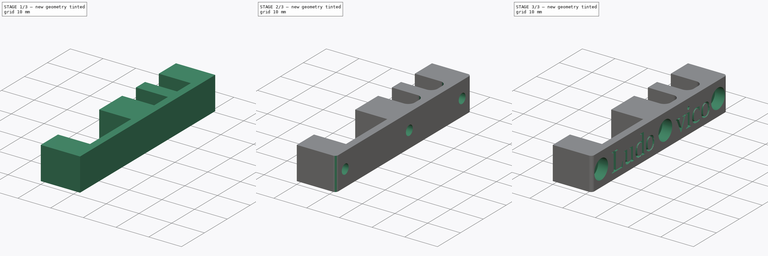
[diagram: build sequence overview — one tinted view per stage of 3, left to right]
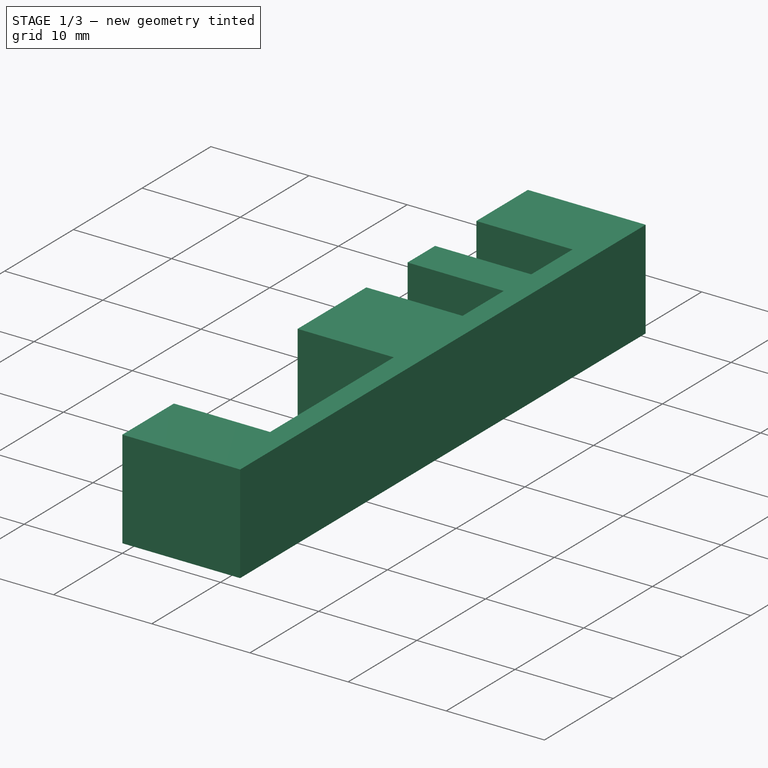
[diagram: stage 1 of 3 — iso view after this stage's code; geometry added in this stage tinted green]
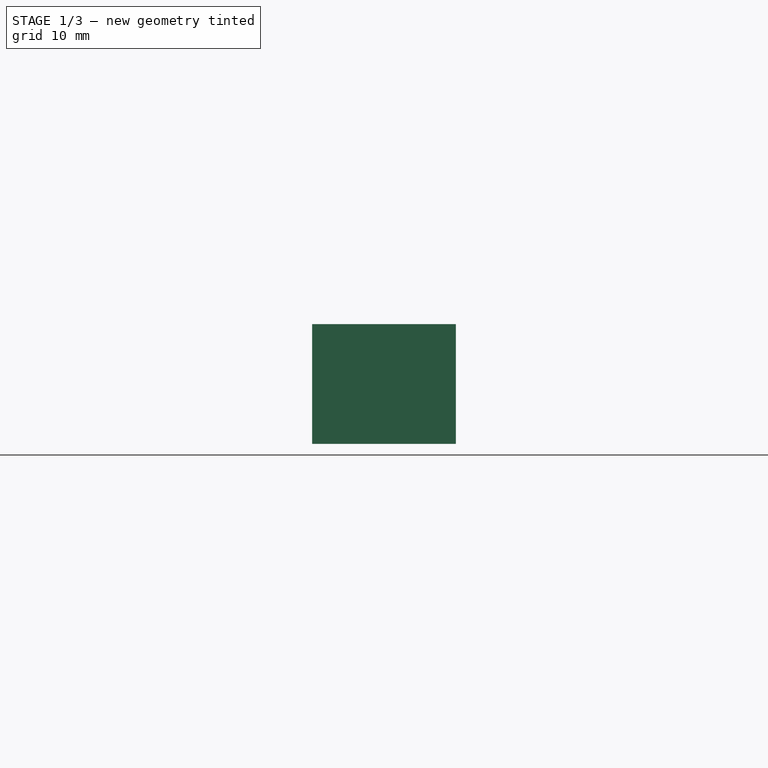
[diagram: stage 1 of 3 — front view after this stage's code; geometry added in this stage tinted green]
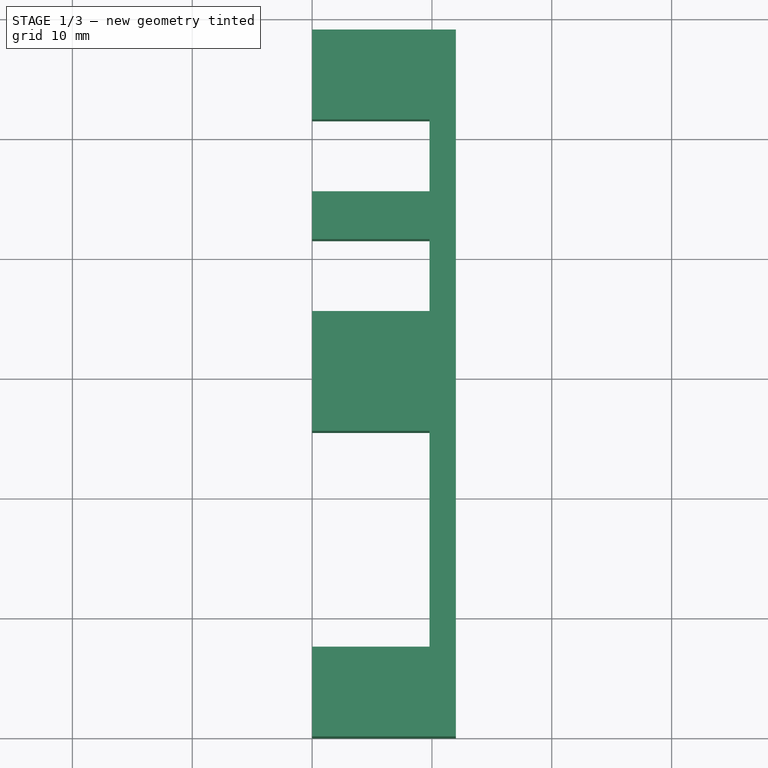
[diagram: stage 1 of 3 — top view after this stage's code; geometry added in this stage tinted green]
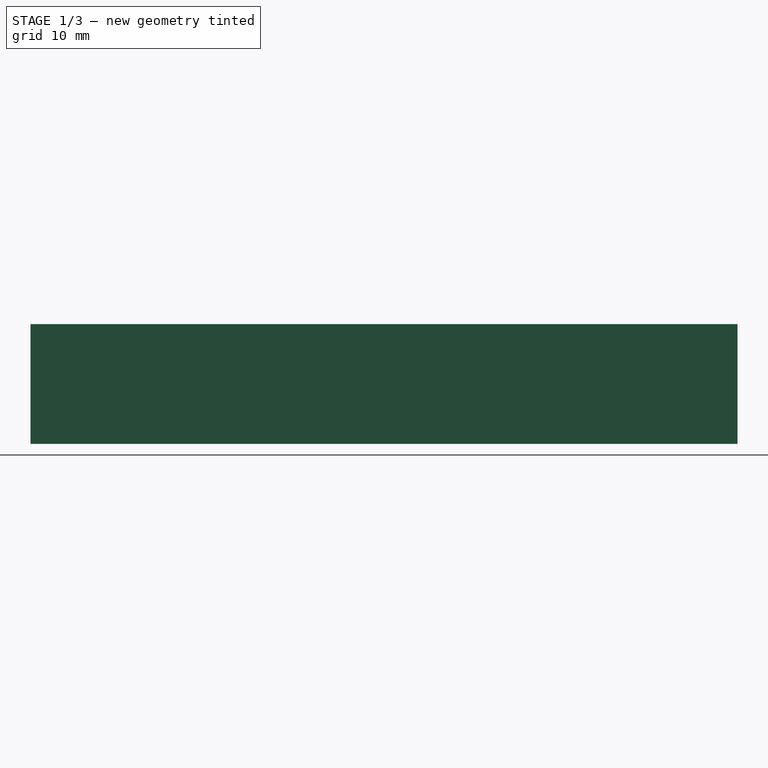
[diagram: stage 1 of 3 — right view after this stage's code; geometry added in this stage tinted green]
FCSTD DOCUMENT  (FreeCAD 0.16R6703 (Git))
Label: Trava de Cabo 2
License: FreeArt
LicenseURL: http://artlibre.org/licence/lal
objects: PartDesign::Pocket×4, Sketcher::SketchObject×3, PartDesign::Fillet×2, Part::Box×1, Part::Part2DObjectPython×1
note: 15 computed .brp shape members not serialized (recipe doc carries the construction recipe); baked Part::Feature solids carry a one-line shape summary decoded from their .brp

FEATURE [Part::Box] Box  label="Cube"
  Height = 10
  Length = 12
  Width = 59
FEATURE [Sketcher::SketchObject] Sketch
  Placement = pos=(0,0,10) rot=(0,0,1;0rad)
  Support = -> Box [Face6]
  sketch-geometry (13):
    g0: LineSegment StartX=0 StartY=25.5 StartZ=0 EndX=9.8 EndY=25.5 EndZ=0
    g1: LineSegment StartX=9.8 StartY=25.5 StartZ=0 EndX=9.8 EndY=7.5 EndZ=0
    g2: LineSegment StartX=9.8 StartY=7.5 StartZ=0 EndX=0 EndY=7.5 EndZ=0
    g3: LineSegment StartX=0 StartY=7.5 StartZ=0 EndX=0 EndY=25.5 EndZ=0
    g4: LineSegment StartX=0 StartY=51.5 StartZ=0 EndX=9.8 EndY=51.5 EndZ=0
    g5: LineSegment StartX=9.8 StartY=51.5 StartZ=0 EndX=9.8 EndY=45.5 EndZ=0
    g6: LineSegment StartX=9.8 StartY=45.5 StartZ=0 EndX=0 EndY=45.5 EndZ=0
    g7: LineSegment StartX=0 StartY=45.5 StartZ=0 EndX=0 EndY=51.5 EndZ=0
    g8: LineSegment [constr] StartX=-4.07983 StartY=59 StartZ=0 EndX=31.1711 EndY=59 EndZ=0
    g9: LineSegment StartX=0 StartY=41.5 StartZ=0 EndX=9.8 EndY=41.5 EndZ=0
    g10: LineSegment StartX=9.8 StartY=41.5 StartZ=0 EndX=9.8 EndY=35.5 EndZ=0
    g11: LineSegment StartX=9.8 StartY=35.5 StartZ=0 EndX=0 EndY=35.5 EndZ=0
    g12: LineSegment StartX=0 StartY=35.5 StartZ=0 EndX=0 EndY=41.5 EndZ=0
  constraints (38):
    c: Coincident(g0,g1)
    c: Coincident(g1,g2)
    c: Coincident(g2,g3)
    c: Coincident(g3,g0)
    c: Horizontal(g0)
    c: Horizontal(g2)
    c: Vertical(g1)
    c: Vertical(g3)
    c: PointOnObject(g0,g-2)
    c: DistanceX(g2,g2) = 9.8
    c: Distance(g-1,g2) = 7.5
    c: DistanceY(g3,g3) = 18
    c: Coincident(g4,g5)
    c: Coincident(g5,g6)
    c: Coincident(g6,g7)
    c: Coincident(g7,g4)
    c: Horizontal(g4)
    c: Horizontal(g6)
    c: Vertical(g5)
    c: Vertical(g7)
    c: PointOnObject(g4,g-2)
    c: Horizontal(g8)
    c: Equal(g6,g2)
    c: Distance(g-1,g8) = 59
    c: Distance(g4,g8) = 7.5
    c: DistanceY(g7,g7) = 6
    c: Coincident(g9,g10)
    c: Coincident(g10,g11)
    c: Coincident(g11,g12)
    c: Coincident(g12,g9)
    c: Horizontal(g9)
    c: Horizontal(g11)
    c: Vertical(g10)
    c: Vertical(g12)
    c: PointOnObject(g9,g-2)
    c: Equal(g12,g7)
    c: Equal(g6,g9)
    c: Distance(g9,g6) = 4
FEATURE [PartDesign::Pocket] Pocket
  Length = 5
  Sketch = -> Sketch
  Type = 1
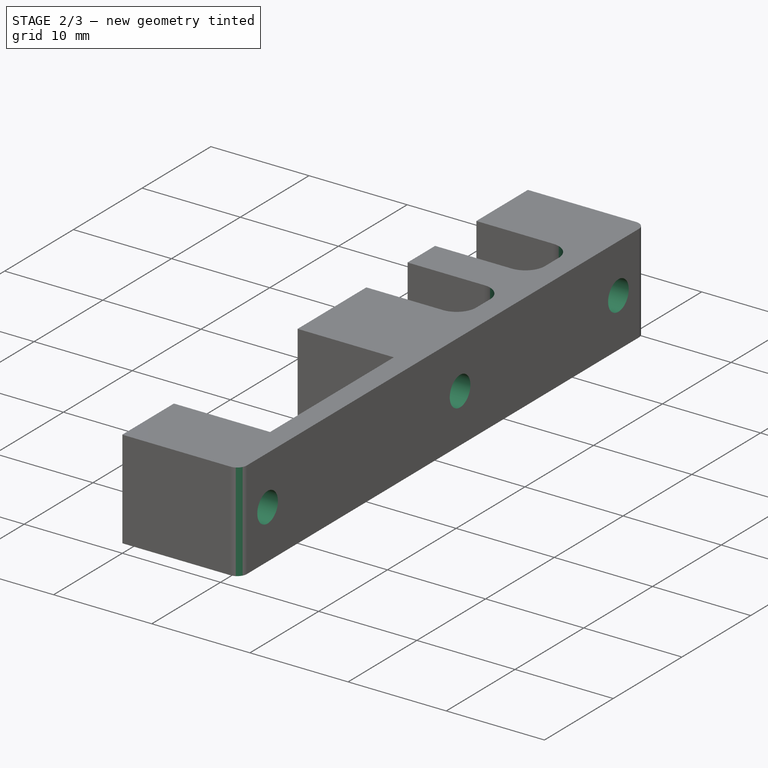
[diagram: stage 2 of 3 — iso view after this stage's code; geometry added in this stage tinted green]
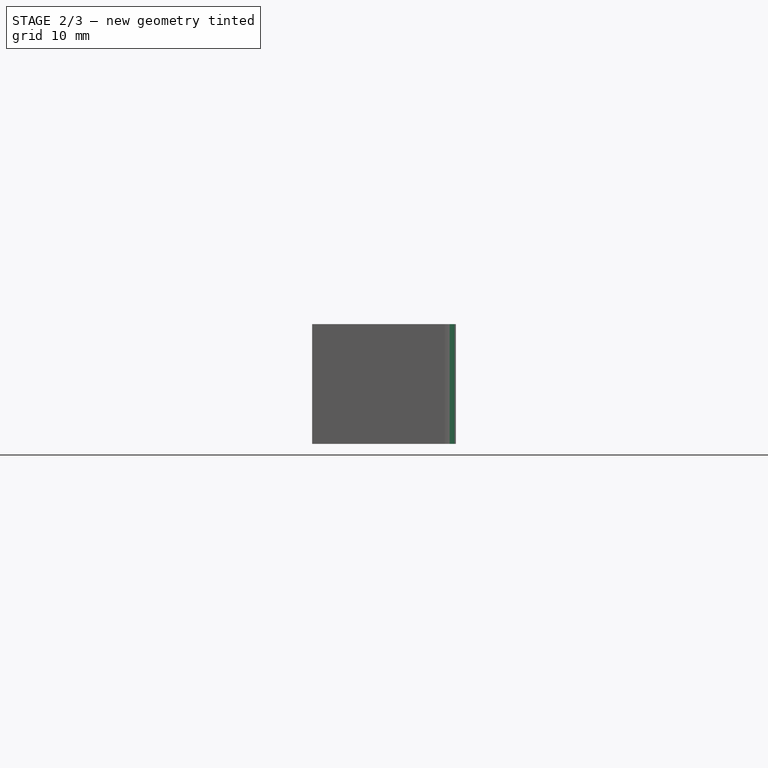
[diagram: stage 2 of 3 — front view after this stage's code; geometry added in this stage tinted green]
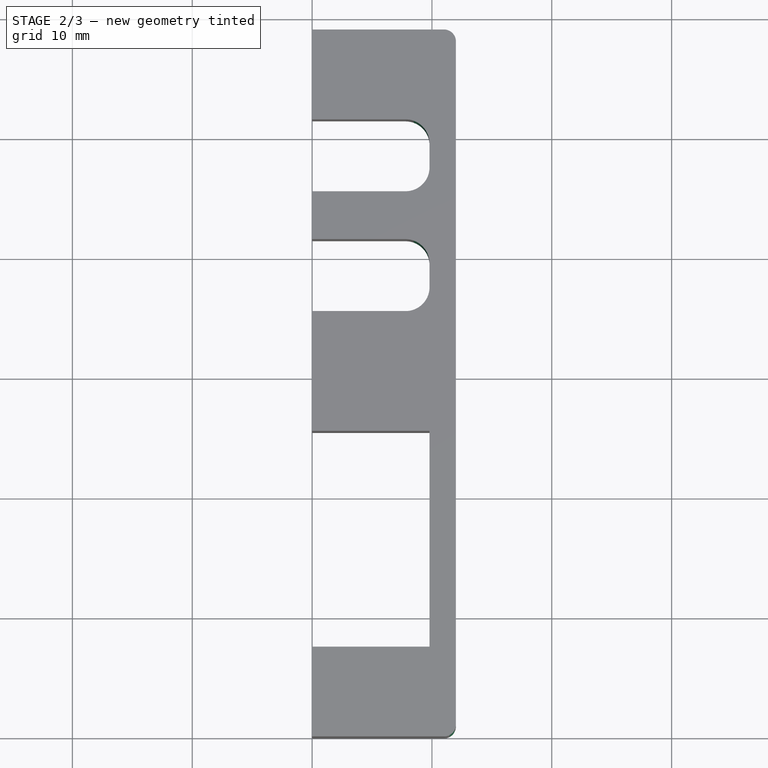
[diagram: stage 2 of 3 — top view after this stage's code; geometry added in this stage tinted green]
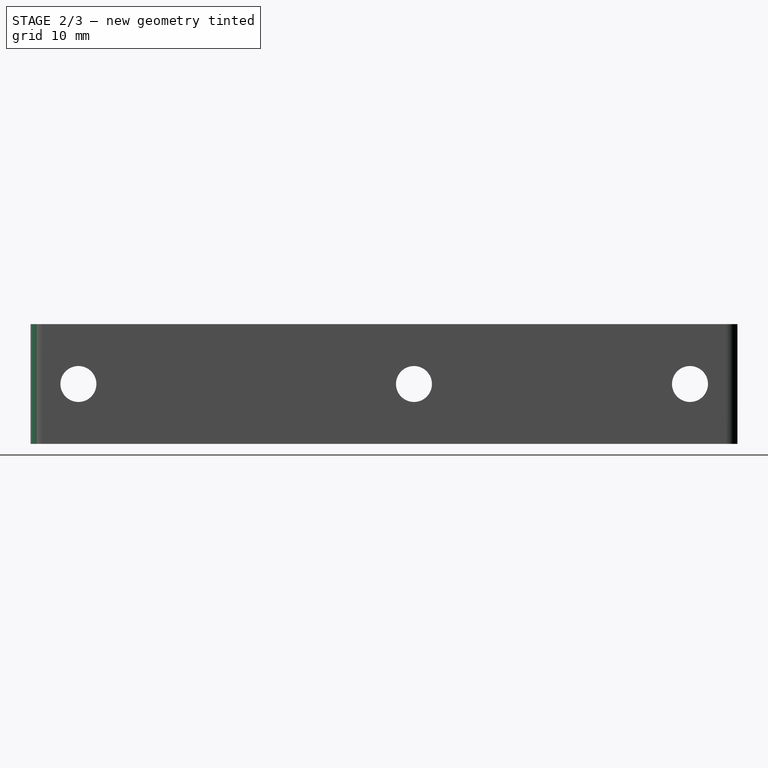
[diagram: stage 2 of 3 — right view after this stage's code; geometry added in this stage tinted green]
FEATURE [Sketcher::SketchObject] Sketch001
  Placement = pos=(0,0,0) rot=(0.57735,-0.57735,-0.57735;2.0944rad)
  Support = -> Pocket [Face1]
  sketch-geometry (3):
    g0: Circle CenterX=-4 CenterY=5 CenterZ=0 NormalX=0 NormalY=0 NormalZ=1 Radius=1.5
    g1: Circle CenterX=-32 CenterY=5 CenterZ=0 NormalX=0 NormalY=0 NormalZ=1 Radius=1.5
    g2: Circle CenterX=-55.0325 CenterY=5 CenterZ=0 NormalX=0 NormalY=0 NormalZ=1 Radius=1.5
  constraints (9):
    c: Radius(g0) = 1.5
    c: Equal(g0,g1)
    c: DistanceX(g0) = -4
    c: DistanceY(g-1,g0) = 5
    c: DistanceY(g-1,g1) = 5
    c: DistanceX(g1,g-1) = 32
    c: Radius(g2) = 1.5
    c: DistanceY(g-1,g2) = 5
    c: DistanceX(g-2,g2) = -55.0325
FEATURE [PartDesign::Pocket] Pocket001
  Length = 5
  Sketch = -> Sketch001
  Type = 1
FEATURE [PartDesign::Fillet] Fillet
  Base = -> Pocket001 [Edge44,Edge48,Edge45,Edge49]
  Radius = 2
FEATURE [PartDesign::Fillet] Fillet001
  Base = -> Fillet [Edge49,Edge53]
  Radius = 1
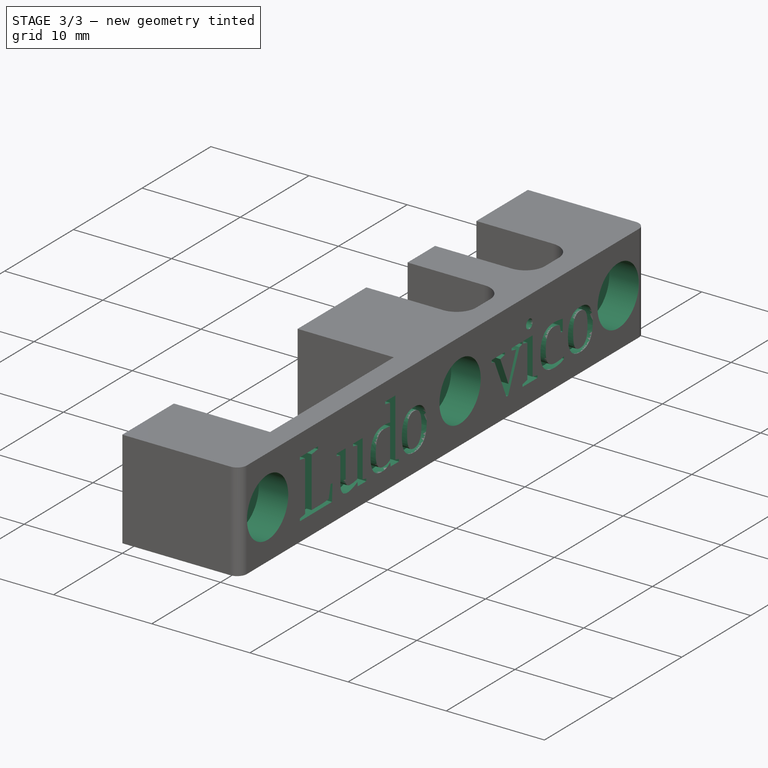
[diagram: stage 3 of 3 — iso view after this stage's code; geometry added in this stage tinted green]
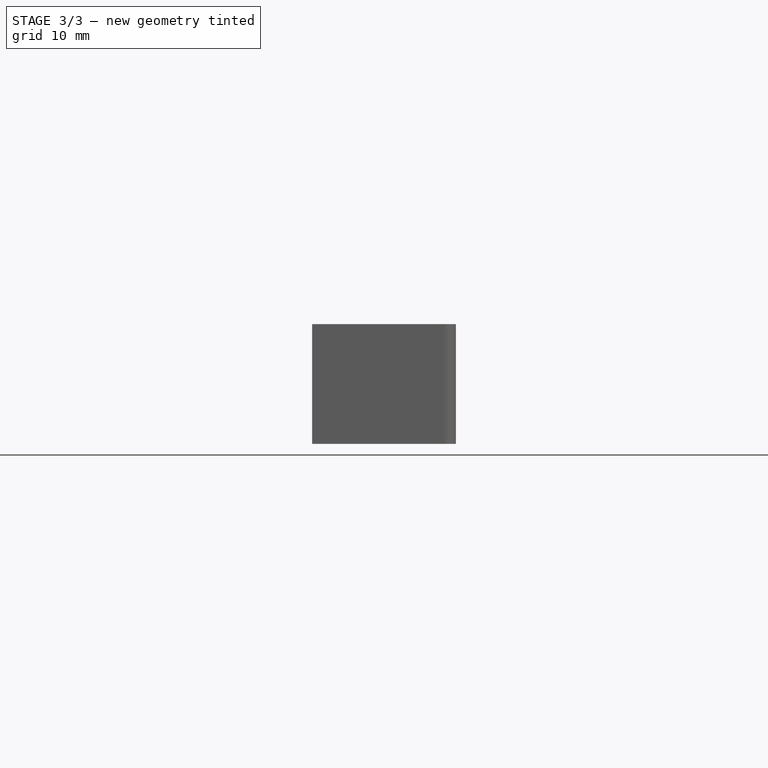
[diagram: stage 3 of 3 — front view after this stage's code; geometry added in this stage tinted green]
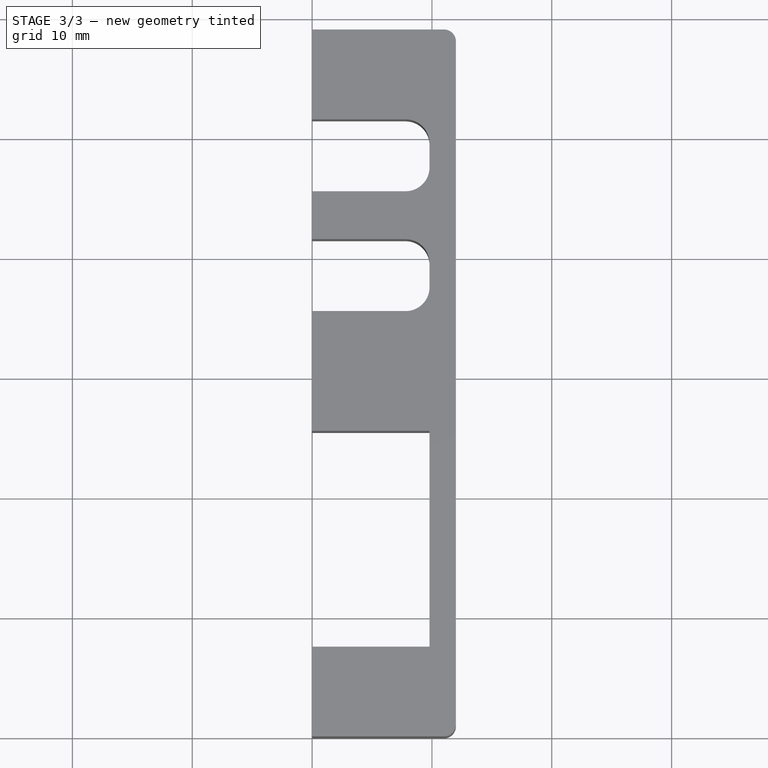
[diagram: stage 3 of 3 — top view after this stage's code; geometry added in this stage tinted green]
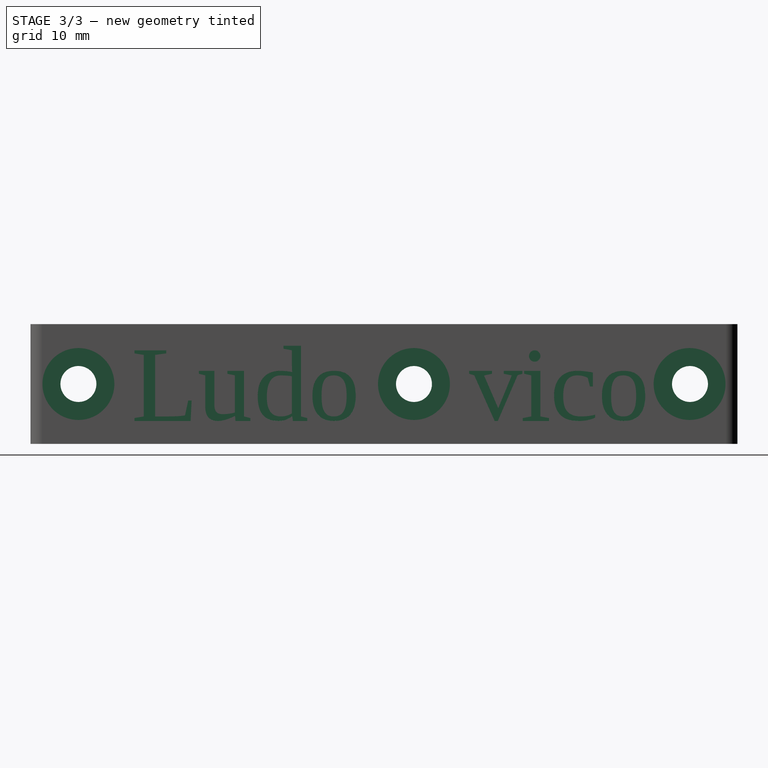
[diagram: stage 3 of 3 — right view after this stage's code; geometry added in this stage tinted green]
FEATURE [Sketcher::SketchObject] Sketch002
  Placement = pos=(12,0,0) rot=(0.57735,0.57735,0.57735;2.0944rad)
  Support = -> Fillet001 [Face5]
  sketch-geometry (4):
    g0: LineSegment [constr] StartX=-3.5897 StartY=5 StartZ=0 EndX=62.3637 EndY=5 EndZ=0
    g1: Circle CenterX=4 CenterY=5 CenterZ=0 NormalX=0 NormalY=0 NormalZ=1 Radius=3
    g2: Circle CenterX=32 CenterY=5 CenterZ=0 NormalX=0 NormalY=0 NormalZ=1 Radius=3
    g3: Circle CenterX=55 CenterY=5 CenterZ=0 NormalX=0 NormalY=0 NormalZ=1 Radius=3
  constraints (11):
    c: Horizontal(g0)
    c: Distance(g-1,g0) = 5
    c: PointOnObject(g1,g0)
    c: PointOnObject(g3,g0)
    c: Radius(g3) = 3
    c: Equal(g3,g2)
    c: Equal(g3,g1)
    c: DistanceX(g-2,g1) = 4
    c: PointOnObject(g2,g0)
    c: DistanceX(g-2,g2) = 32
    c: DistanceX(g-2,g3) = 55
FEATURE [PartDesign::Pocket] Pocket002
  Length = 3
  Sketch = -> Sketch002
  Type = 0
FEATURE [Part::Part2DObjectPython] ShapeString  # Draft 2D object (typed FeaturePython)
  FontFile = <path>
  Placement = pos=(12,8.5,1.91292) rot=(0.57735,0.57735,0.57735;2.0944rad)
  Size = 7
  String = Ludo    vico
  Support = -> Pocket002
  Tracking = 0
FEATURE [PartDesign::Pocket] Pocket003
  Length = 1
  Sketch = -> ShapeString
  Type = 0
note: 1 file-system path scrubbed to <path> (originals preserved in the JSON sidecar)
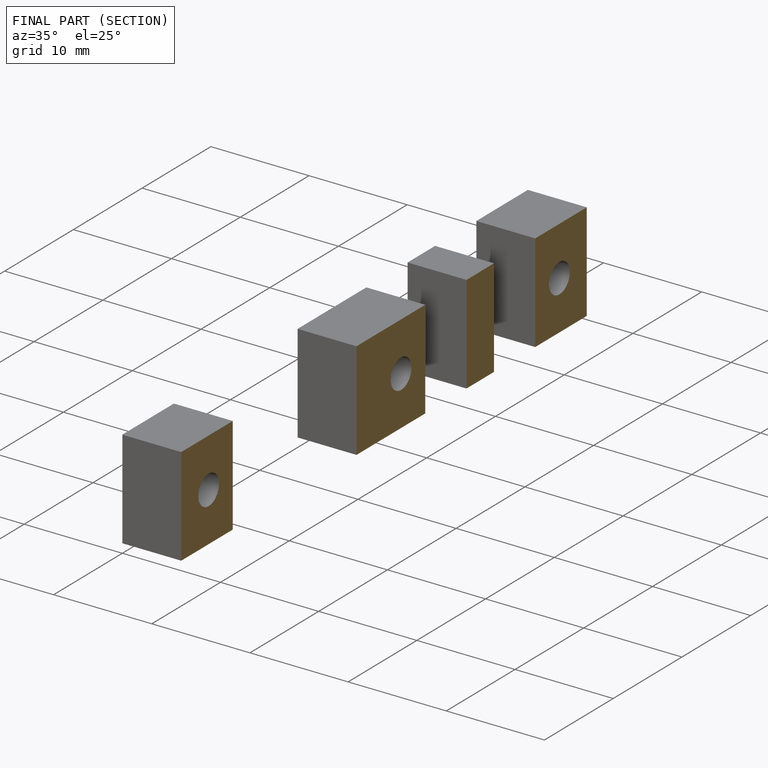
[diagram: finished part — half-section view (interior)]
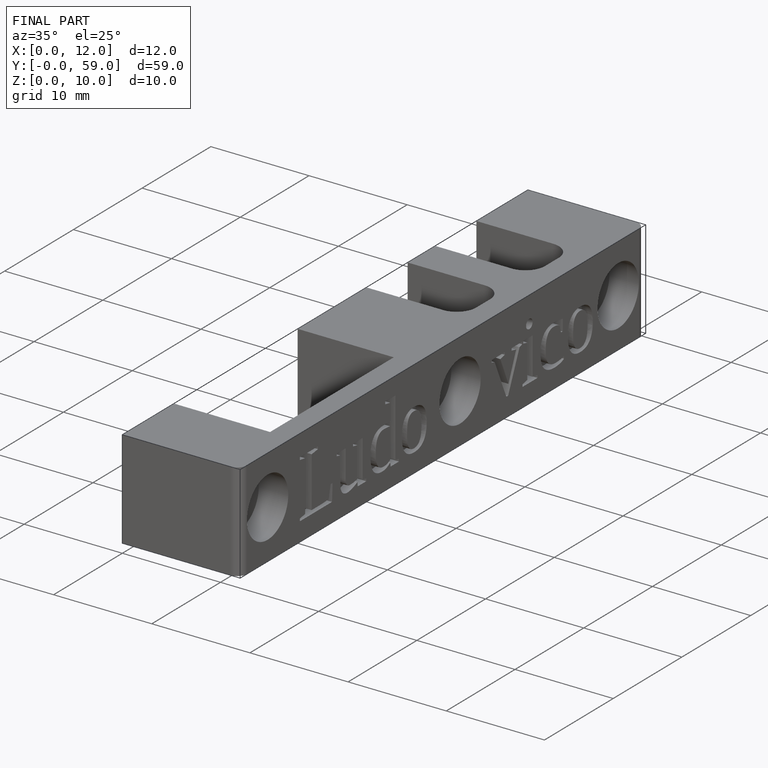
[diagram: finished part — iso view with bounding-box wireframe]
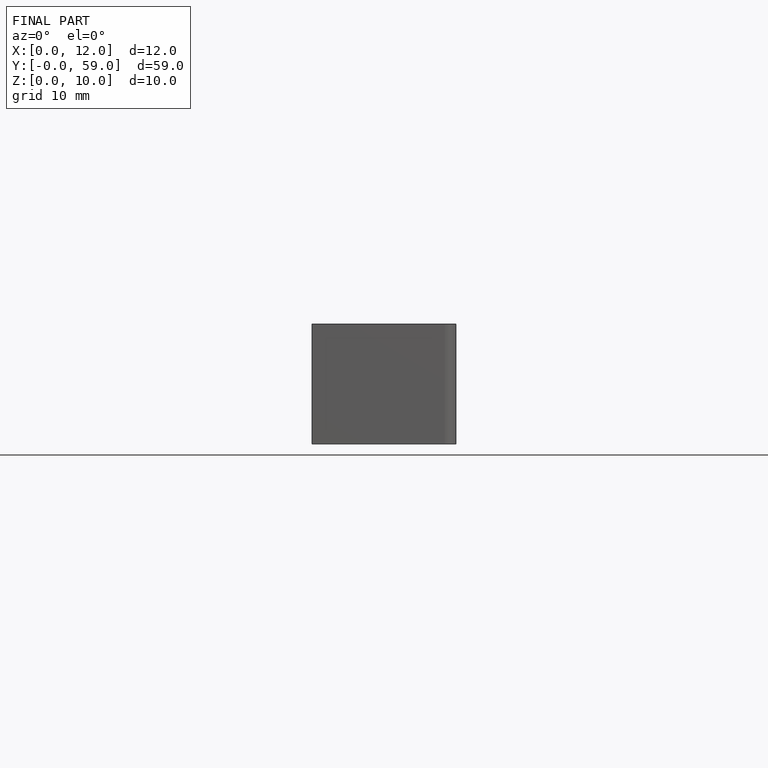
[diagram: finished part — front view with bounding-box wireframe]
